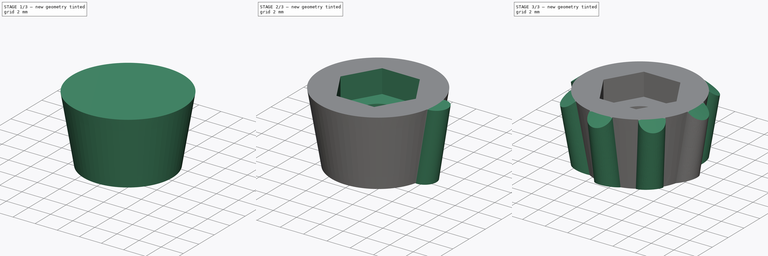
[diagram: build sequence overview — one tinted view per stage of 3, left to right]
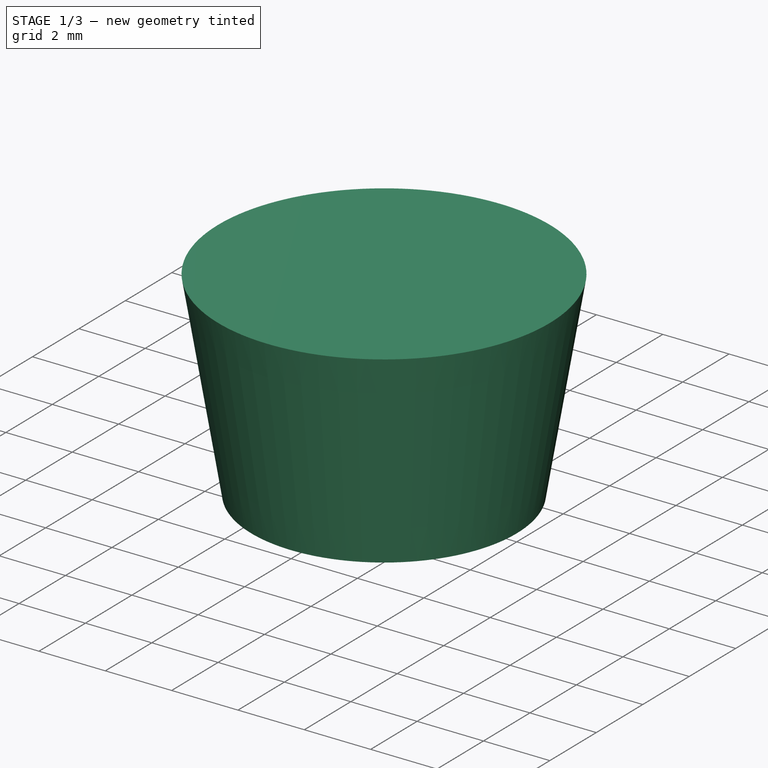
[diagram: stage 1 of 3 — iso view after this stage's code; geometry added in this stage tinted green]
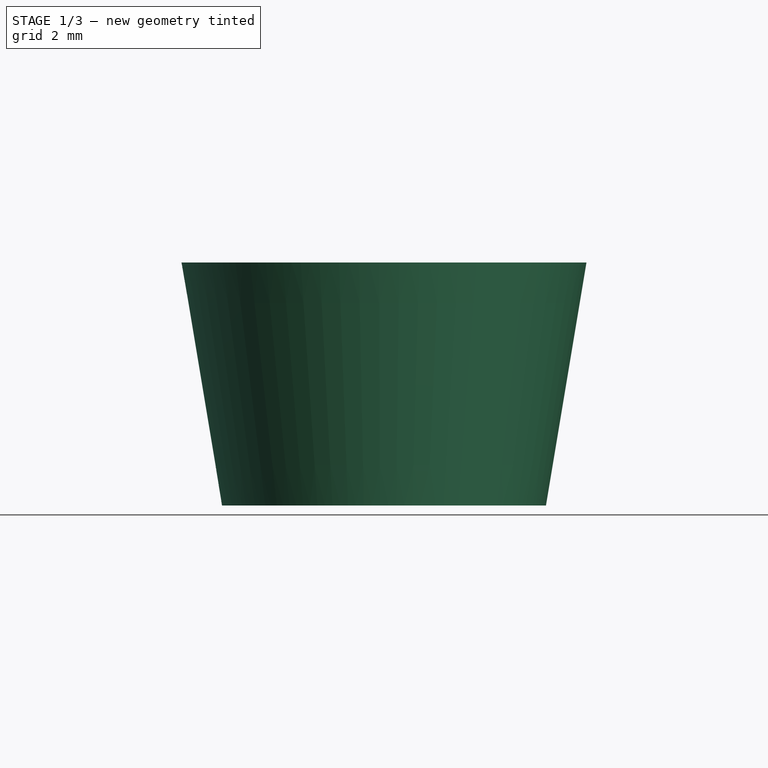
[diagram: stage 1 of 3 — front view after this stage's code; geometry added in this stage tinted green]
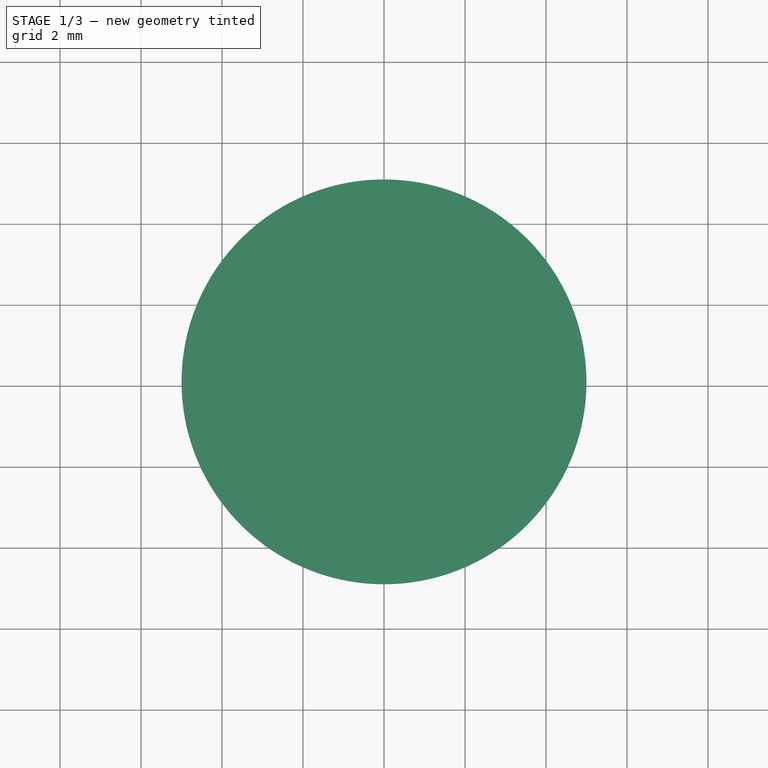
[diagram: stage 1 of 3 — top view after this stage's code; geometry added in this stage tinted green]
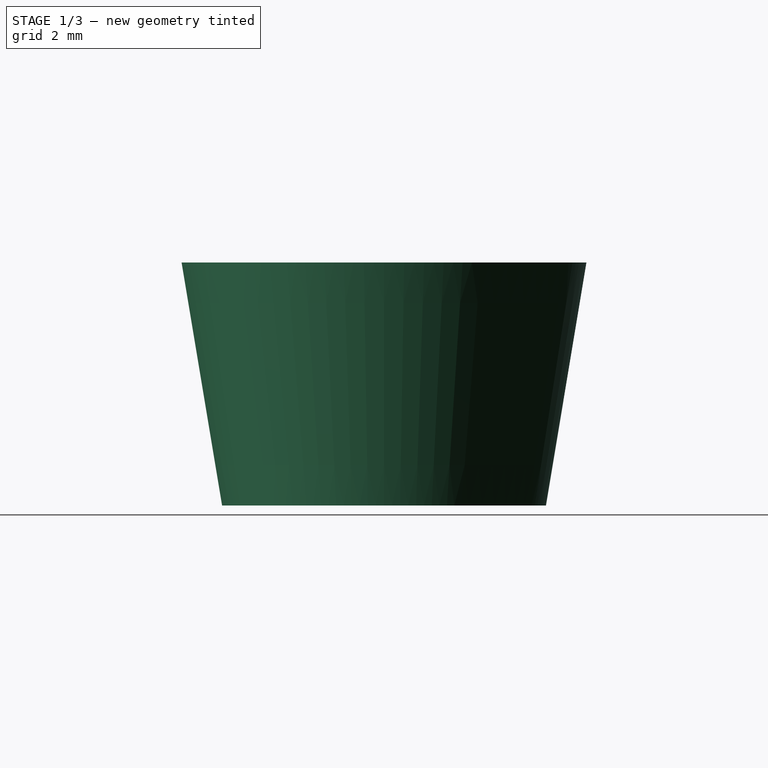
[diagram: stage 1 of 3 — right view after this stage's code; geometry added in this stage tinted green]
FCSTD DOCUMENT  (FreeCAD 0.18.1R)
Label: Bottom Stand
License: All rights reserved
LicenseURL: http://en.wikipedia.org/wiki/All_rights_reserved
objects: Sketcher::SketchObject×7, PartDesign::Pocket×3, PartDesign::Revolution×1, Spreadsheet::Sheet×1, PartDesign::AdditiveLoft×1, PartDesign::PolarPattern×1, PartDesign::Groove×1, PartDesign::Body×1
note: 21 computed .brp shape members not serialized (recipe doc carries the construction recipe); baked Part::Feature solids carry a one-line shape summary decoded from their .brp

FEATURE [Sketcher::SketchObject] Sketch  label="Sketch Stand Profile"
  MapMode = 5
  Placement = pos=(0,0,0) rot=(1,0,0;1.5708rad)
  Support = -> [XZ_Plane]
  sketch-geometry (4):
    g0: LineSegment StartX=0 StartY=0 StartZ=0 EndX=4 EndY=0 EndZ=0
    g1: LineSegment StartX=4 StartY=0 StartZ=0 EndX=5 EndY=6 EndZ=0
    g2: LineSegment StartX=5 StartY=6 StartZ=0 EndX=0 EndY=6 EndZ=0
    g3: LineSegment StartX=0 StartY=6 StartZ=0 EndX=0 EndY=0 EndZ=0
  constraints (11):
    c: PointOnObject(g0,g-1)
    c: Coincident(g0,g1)
    c: Coincident(g1,g2)
    c: Horizontal(g2)
    c: Coincident(g3,g0)
    c: Vertical(g3)
    c: Coincident(g0,g-1)
    c: Distance(g2,g0) = 6
    c: Distance(g1,g3) = 5
    c: Distance(g0) = 4
    c: Coincident(g3,g2)
FEATURE [PartDesign::Revolution] Revolution  label="Stand Profile"
  Angle = 360
  Axis = (0,-2e-16,1)
  Base = (0,0,0)
  Placement = pos=(0,0,0) rot=(1,0,0;1.5708rad)
  Profile = -> Sketch
  ReferenceAxis = -> Sketch [V_Axis]
  Reversed = true
FEATURE [Sketcher::SketchObject] Sketch001  label="Sketch Screw Head Cutout"
  MapMode = 5
  Placement = pos=(0,0,0) rot=(1,0,0;3.14159rad)
  Support = -> [Revolution]
  sketch-geometry (1):
    g0: Circle CenterX=0 CenterY=0 CenterZ=0 NormalX=0 NormalY=0 NormalZ=1 AngleXU=0 Radius=3
  constraints (2):
    c: Coincident(g0,g-1)
    c: Diameter(g0) = 6
FEATURE [PartDesign::Pocket] Pocket  label="Screw Head Cutout"
  BaseFeature = -> Revolution
  Length = 2
  Length2 = 100
  Placement = pos=(0,0,0) rot=(1,0,0;1.5708rad)
  Profile = -> Sketch001
  Type = 0
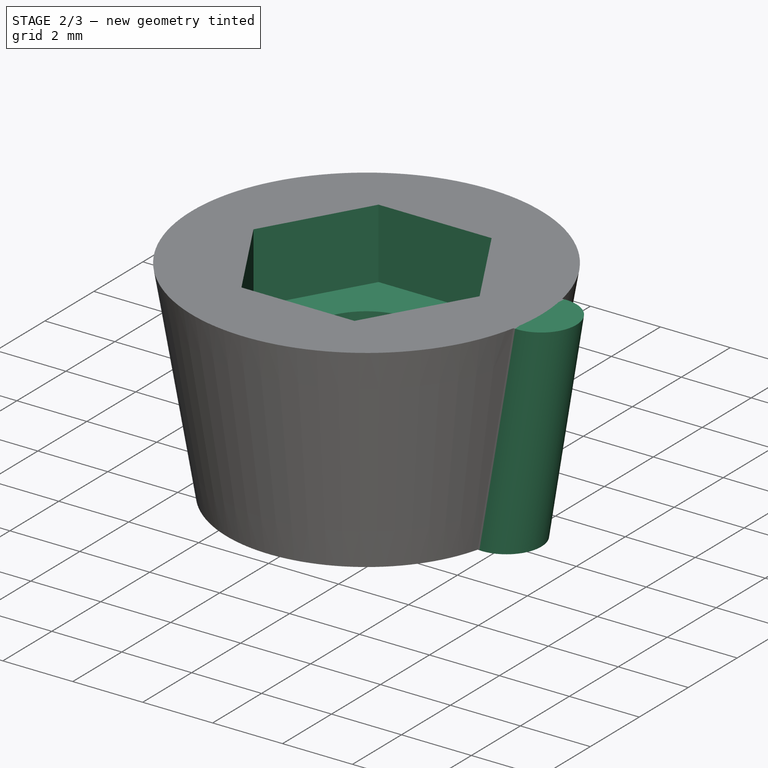
[diagram: stage 2 of 3 — iso view after this stage's code; geometry added in this stage tinted green]
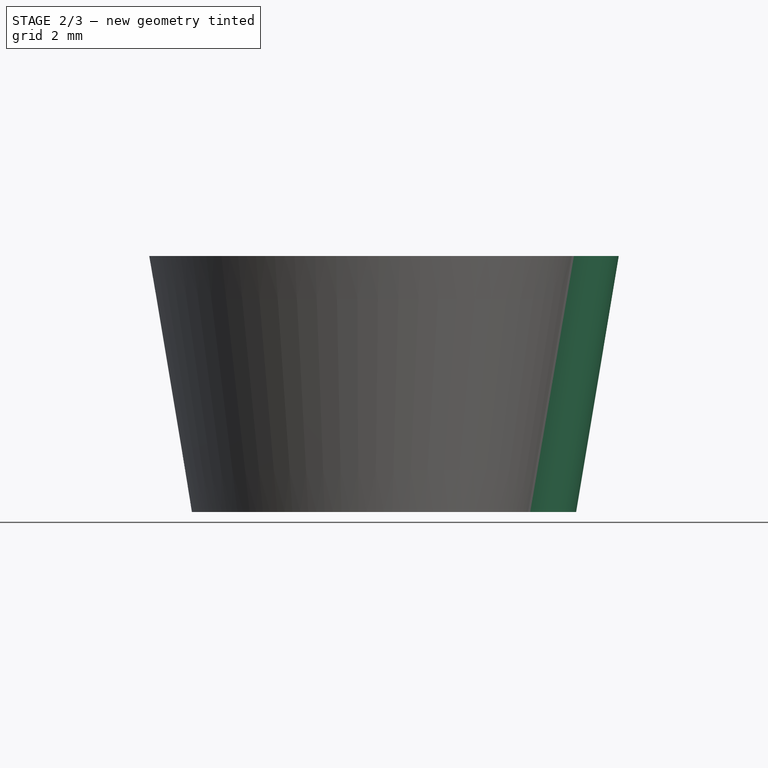
[diagram: stage 2 of 3 — front view after this stage's code; geometry added in this stage tinted green]
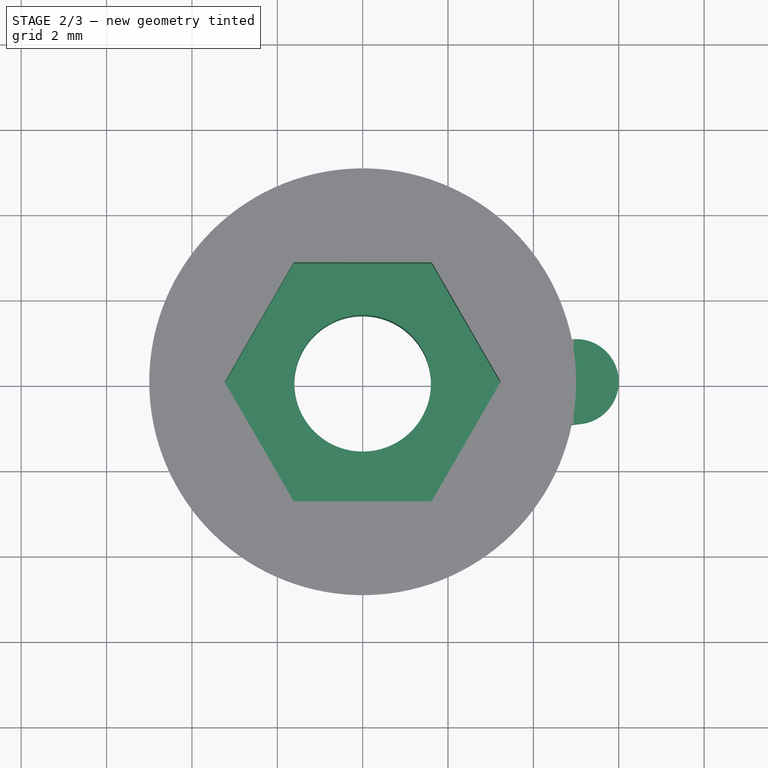
[diagram: stage 2 of 3 — top view after this stage's code; geometry added in this stage tinted green]
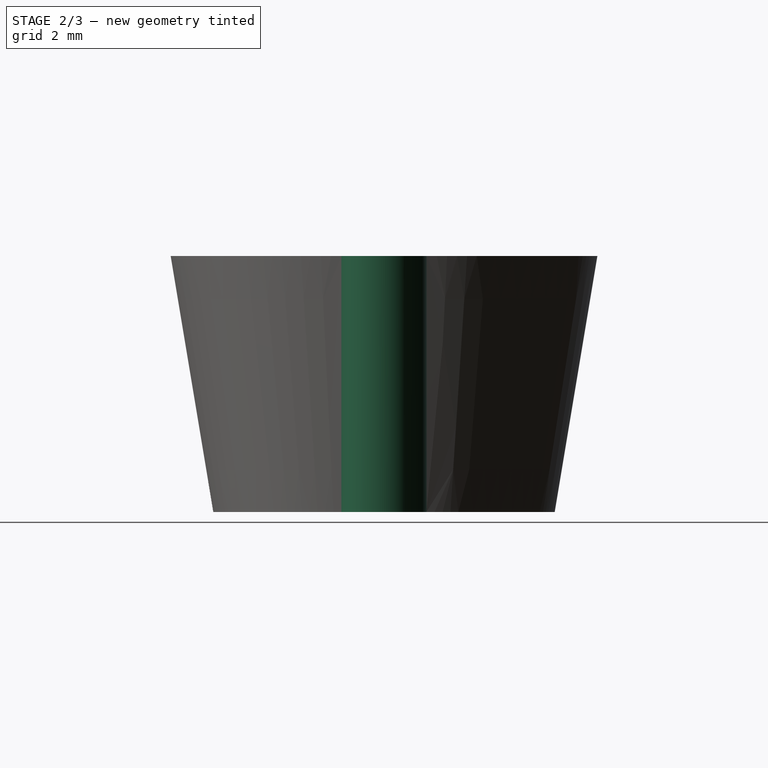
[diagram: stage 2 of 3 — right view after this stage's code; geometry added in this stage tinted green]
FEATURE [Sketcher::SketchObject] Sketch002  label="Sketch Screw Hole"
  MapMode = 5
  Placement = pos=(0,0,2) rot=(1,0,0;3.14159rad)
  Support = -> [Pocket]
  expr: Constraints[1] = Screws.m3D
  sketch-geometry (1):
    g0: Circle CenterX=0 CenterY=0 CenterZ=0 NormalX=0 NormalY=0 NormalZ=1 AngleXU=0 Radius=1.6
  constraints (2):
    c: Coincident(g0,g-1)
    c: Diameter(g0) = 3.2
FEATURE [Spreadsheet::Sheet] Spreadsheet  label="Screws"
  cells = A1=Screw Type; B1=Length; D1=Diameter Loose; F1=Diameter Tight; H1=Width Across Flats; A2=M3 Tapping; B2=m3tl; C2(m3tl)==12mm; D2=m3tD; E2(m3tD)==3.4mm; F2=m3td; G2(m3td)==2.8mm; A3=M3x30; B3=m3l; C3(m3l)==30mm; D3=m3D; E3(m3D)==3.2mm; F3=m3d; G3(m3d)==2.8mm; A4=M3 Nut; H4=m3S; I4(m3S)==5.6mm
FEATURE [PartDesign::Pocket] Pocket001  label="Screw Hole"
  BaseFeature = -> Pocket
  Length = 5
  Length2 = 100
  Placement = pos=(0,0,0) rot=(1,0,0;1.5708rad)
  Profile = -> Sketch002
  Type = 1
FEATURE [Sketcher::SketchObject] Sketch003  label="Sketch Nut Cutout"
  MapMode = 5
  Placement = pos=(0,1.3e-15,6) rot=(0,0,1;3.14159rad)
  Support = -> [Pocket001]
  expr: Constraints[19] = Screws.m3S
  sketch-geometry (7):
    g0: LineSegment StartX=-3.23316 StartY=4e-16 StartZ=0 EndX=-1.61658 EndY=-2.8 EndZ=0
    g1: LineSegment StartX=-1.61658 StartY=-2.8 StartZ=0 EndX=1.61658 EndY=-2.8 EndZ=0
    g2: LineSegment StartX=1.61658 StartY=-2.8 StartZ=0 EndX=3.23316 EndY=-4e-16 EndZ=0
    g3: LineSegment StartX=3.23316 StartY=-3e-16 StartZ=0 EndX=1.61658 EndY=2.8 EndZ=0
    g4: LineSegment StartX=1.61658 StartY=2.8 StartZ=0 EndX=-1.61658 EndY=2.8 EndZ=0
    g5: LineSegment StartX=-1.61658 StartY=2.8 StartZ=0 EndX=-3.23316 EndY=4e-16 EndZ=0
    g6: Circle [constr] CenterX=0 CenterY=0 CenterZ=0 NormalX=0 NormalY=0 NormalZ=1 AngleXU=0 Radius=3.23316
  constraints (16):
    c: Coincident(g0,g1)
    c: Coincident(g1,g2)
    c: Coincident(g2,g3)
    c: Coincident(g3,g4)
    c: Coincident(g4,g5)
    c: Coincident(g5,g0)
    c: Equal(g0, g1-g5) x5
    c: PointOnObject(g0,g6)
    c: PointOnObject(g1,g6)
    c: PointOnObject(g2,g6)
    c: PointOnObject(g3,g6)
    c: PointOnObject(g4,g6)
    c: PointOnObject(g5,g6)
    c: Coincident(g6,g-1)
    c: Horizontal(g1)
    c: Distance(g0,g4) = 5.6
FEATURE [PartDesign::Pocket] Pocket002  label="Nut Cutout"
  BaseFeature = -> Pocket001
  Length = 2
  Length2 = 100
  Placement = pos=(0,0,0) rot=(1,0,0;1.5708rad)
  Profile = -> Sketch003
  Type = 0
FEATURE [Sketcher::SketchObject] Sketch004  label="Top Sketch"
  ExternalGeometry = -> [Pocket002]
  MapMode = 5
  Placement = pos=(0,0,0) rot=(1,0,0;3.14159rad)
  Support = -> [Pocket002]
  sketch-geometry (2):
    g0: ArcOfCircle CenterX=4 CenterY=0 CenterZ=0 NormalX=0 NormalY=0 NormalZ=1 AngleXU=0 Radius=1 StartAngle=4.58706 EndAngle=7.97931
    g1: ArcOfCircle CenterX=0 CenterY=0 CenterZ=0 NormalX=0 NormalY=0 NormalZ=1 AngleXU=0 Radius=4 StartAngle=6.03253 EndAngle=6.53384
  constraints (7):
    c: PointOnObject(g0,g-3)
    c: PointOnObject(g0,g-3)
    c: Coincident(g1,g-1)
    c: Coincident(g1,g0)
    c: Coincident(g1,g0)
    c: Radius(g0) = 1
    c: PointOnObject(g0,g-1)
FEATURE [Sketcher::SketchObject] Sketch005  label="Bottom Sketch"
  ExternalGeometry = -> [Pocket002,Sketch004]
  MapMode = 5
  Placement = pos=(0,1.3e-15,6) rot=(0,0,1;3.14159rad)
  Support = -> [Pocket002]
  sketch-geometry (2):
    g0: ArcOfCircle CenterX=-5 CenterY=0 CenterZ=0 NormalX=0 NormalY=0 NormalZ=1 AngleXU=0 Radius=1 StartAngle=1.47063 EndAngle=4.81256
    g1: ArcOfCircle CenterX=0 CenterY=0 CenterZ=0 NormalX=0 NormalY=0 NormalZ=1 AngleXU=0 Radius=5 StartAngle=2.94126 EndAngle=3.34193
  constraints (7):
    c: PointOnObject(g0,g-3)
    c: PointOnObject(g0,g-3)
    c: PointOnObject(g0,g-1)
    c: Coincident(g1,g-1)
    c: Coincident(g1,g0)
    c: Coincident(g1,g0)
    c: Equal(g-4,g0)
FEATURE [PartDesign::AdditiveLoft] AdditiveLoft  label="Knob Loft"
  BaseFeature = -> Pocket002
  Closed = false
  Placement = pos=(0,0,0) rot=(1,0,0;1.5708rad)
  Profile = -> Sketch004
  Ruled = false
  Sections = -> [Sketch005]
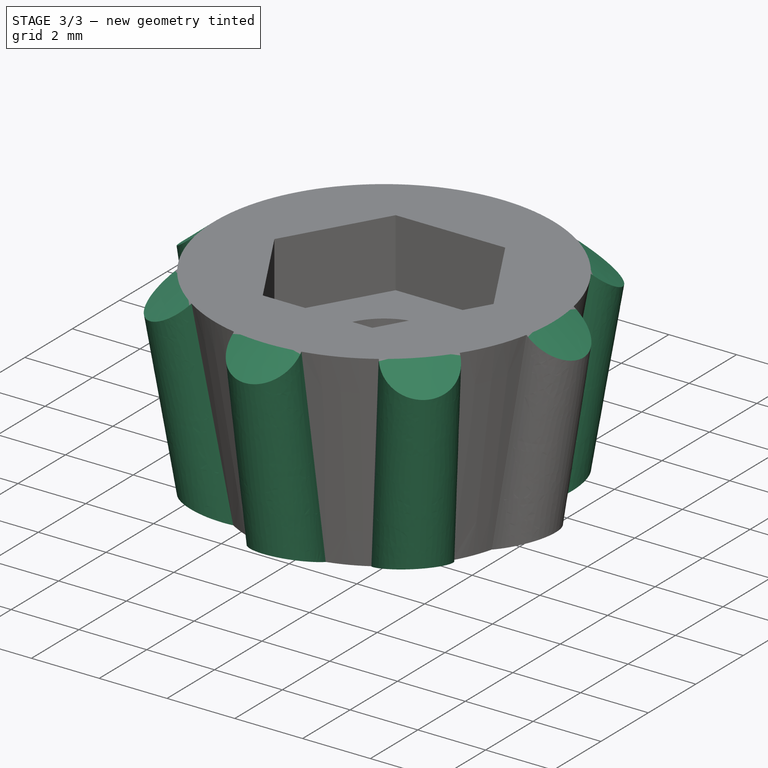
[diagram: stage 3 of 3 — iso view after this stage's code; geometry added in this stage tinted green]
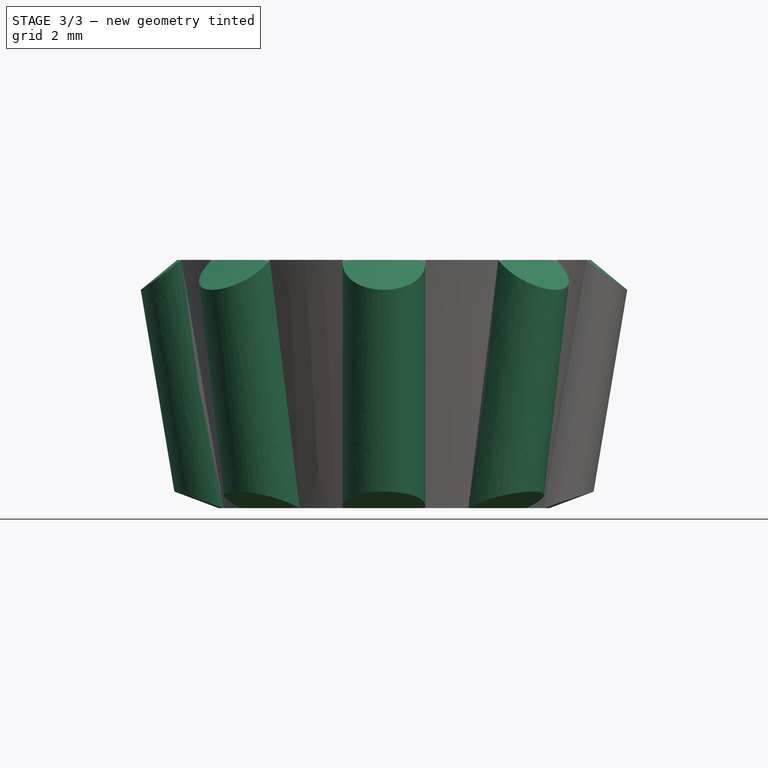
[diagram: stage 3 of 3 — front view after this stage's code; geometry added in this stage tinted green]
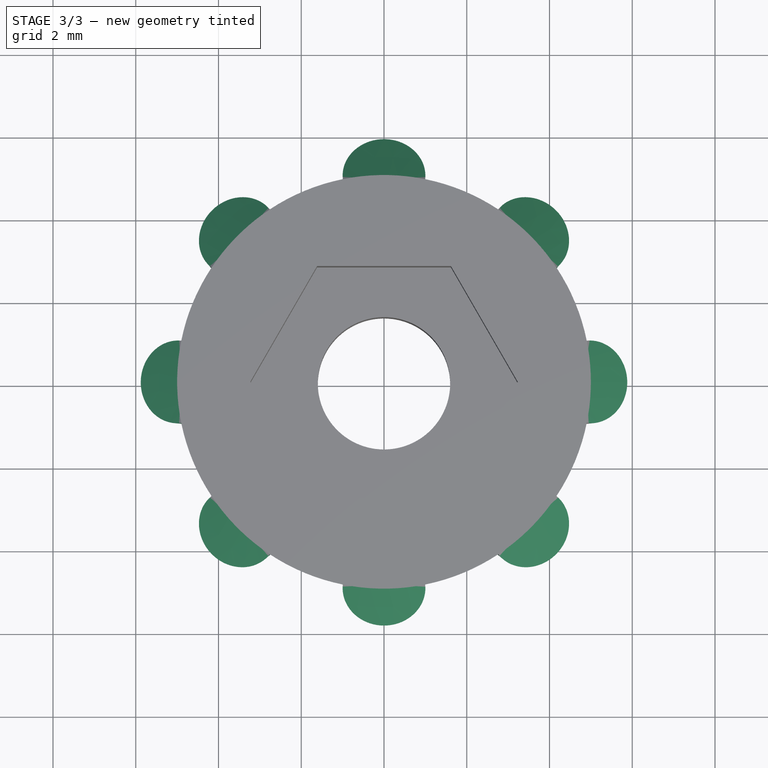
[diagram: stage 3 of 3 — top view after this stage's code; geometry added in this stage tinted green]
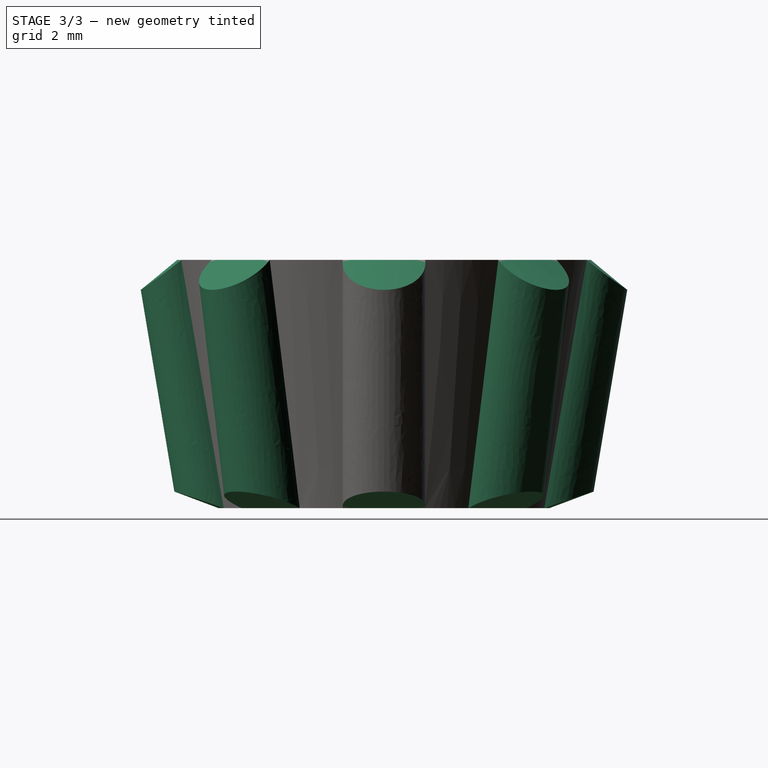
[diagram: stage 3 of 3 — right view after this stage's code; geometry added in this stage tinted green]
FEATURE [PartDesign::PolarPattern] PolarPattern  label="PolarPattern Knobs"
  Angle = 360
  Axis = -> Sketch004 [N_Axis]
  BaseFeature = -> AdditiveLoft
  Occurrences = 8
  Originals = -> [AdditiveLoft]
  Placement = pos=(0,0,0) rot=(1,0,0;1.5708rad)
FEATURE [Sketcher::SketchObject] Sketch006  label="Sketch Knobs Edges Revolve Cut"
  ExternalGeometry = -> [Pocket002]
  MapMode = 5
  Placement = pos=(0,0,0) rot=(1,0,0;1.5708rad)
  Support = -> [XZ_Plane]
  sketch-geometry (6):
    g0: LineSegment StartX=5 StartY=6 StartZ=0 EndX=6.01379 EndY=6 EndZ=0
    g1: LineSegment StartX=5.01379 StartY=0 StartZ=0 EndX=4 EndY=0 EndZ=0
    g2: LineSegment StartX=5 StartY=6 StartZ=0 EndX=5.89148 EndY=5.26611 EndZ=0
    g3: LineSegment StartX=5.89148 StartY=5.26611 StartZ=0 EndX=6.01379 EndY=6 EndZ=0
    g4: LineSegment StartX=4 StartY=0 StartZ=0 EndX=5.08131 EndY=0.405096 EndZ=0
    g5: LineSegment StartX=5.08131 StartY=0.405096 StartZ=0 EndX=5.01379 EndY=0 EndZ=0
  constraints (16):
    c: Coincident(g-3,g0)
    c: Horizontal(g0)
    c: PointOnObject(g1,g-1)
    c: Coincident(g1,g-3)
    c: Coincident(g0,g2)
    c: Coincident(g2,g3)
    c: Coincident(g3,g0)
    c: Coincident(g1,g4)
    c: Coincident(g4,g5)
    c: Coincident(g5,g1)
    c: Parallel(g3,g5)
    c: Parallel(g5,g-3)
    c: Equal(g0,g1)
    c: Equal(g2,g4)
    c: Distance(g0,g3) = 1
    c: Angle(g-3,g2) = 1.0472
FEATURE [PartDesign::Groove] Groove  label="Knobs Edges Revolve Cut"
  Angle = 360
  Axis = (0,-2e-16,1)
  Base = (0,0,0)
  BaseFeature = -> PolarPattern
  Placement = pos=(0,0,0) rot=(1,0,0;1.5708rad)
  Profile = -> Sketch006
  ReferenceAxis = -> Sketch006 [V_Axis]
FEATURE [PartDesign::Body] Body  label="Bottom Stand"
  Group = -> [Sketch,Revolution,Sketch001,Pocket,Sketch002,Pocket001,Sketch003,Pocket002,Sketch004,Sketch005,AdditiveLoft,PolarPattern,Sketch006,Groove]
  Origin = -> Origin
  Placement = pos=(0,0,0) rot=(0,1,0;3.14159rad)
  Tip = -> Groove
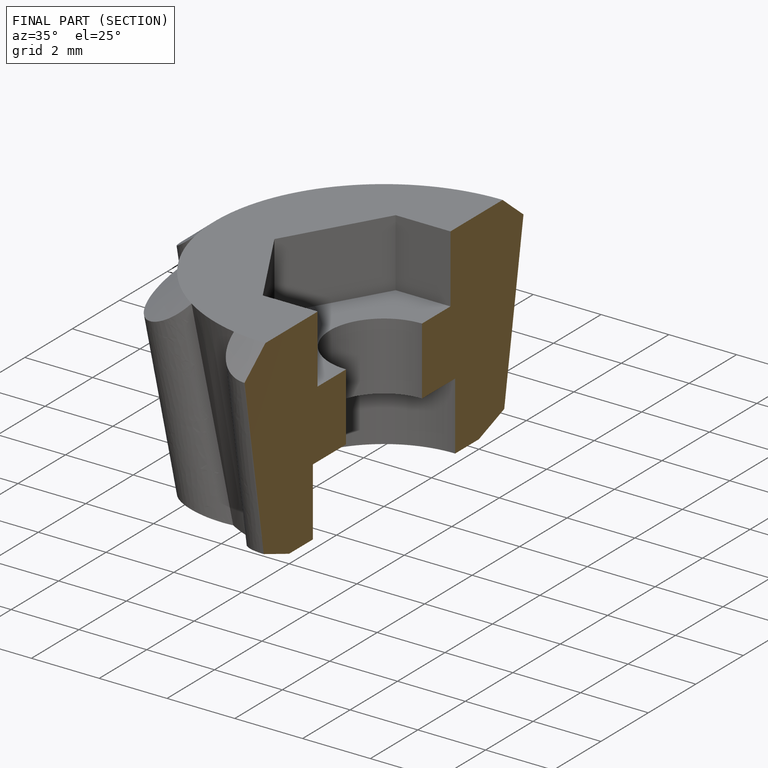
[diagram: finished part — half-section view (interior)]
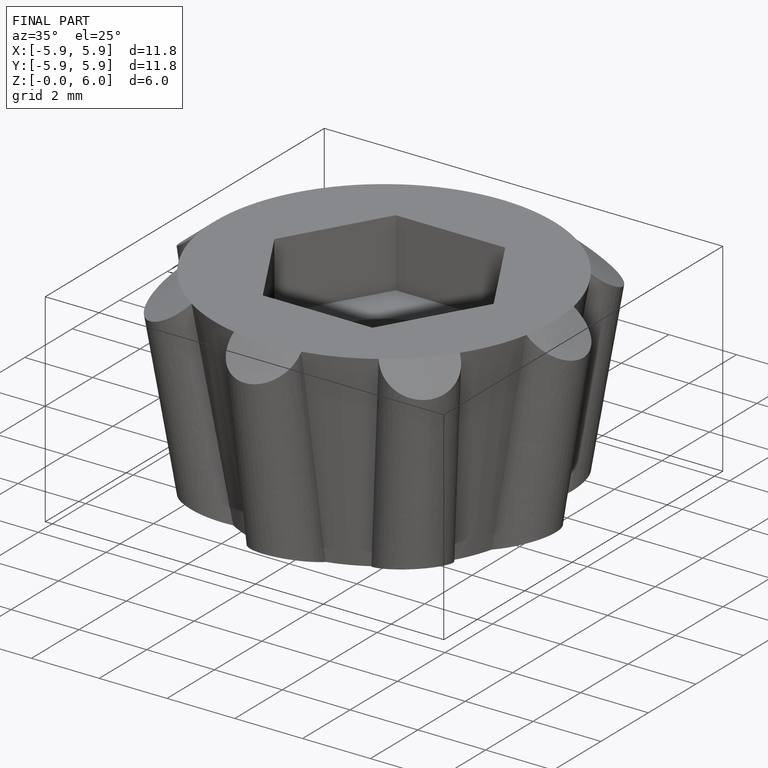
[diagram: finished part — iso view with bounding-box wireframe]
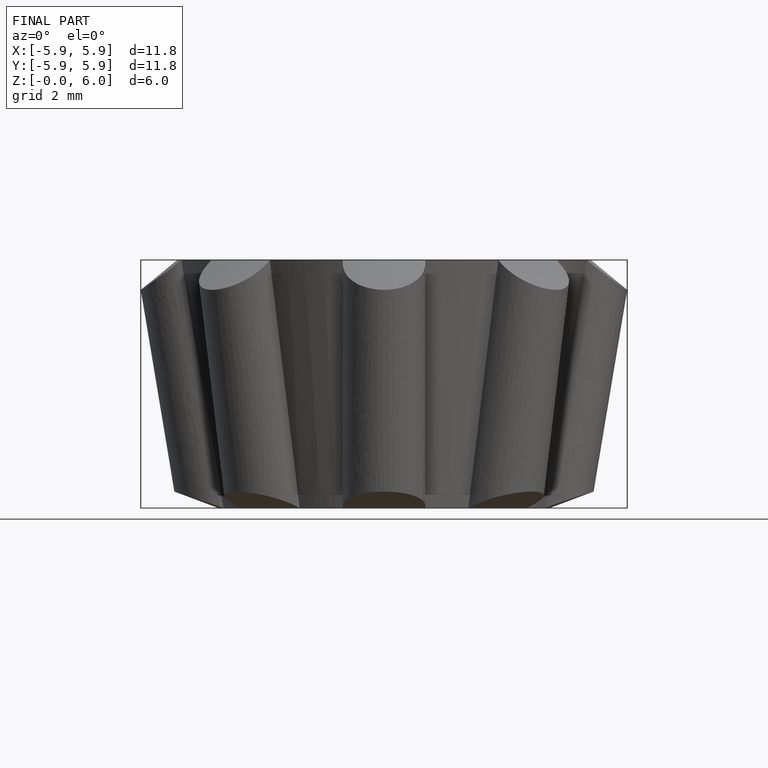
[diagram: finished part — front view with bounding-box wireframe]
